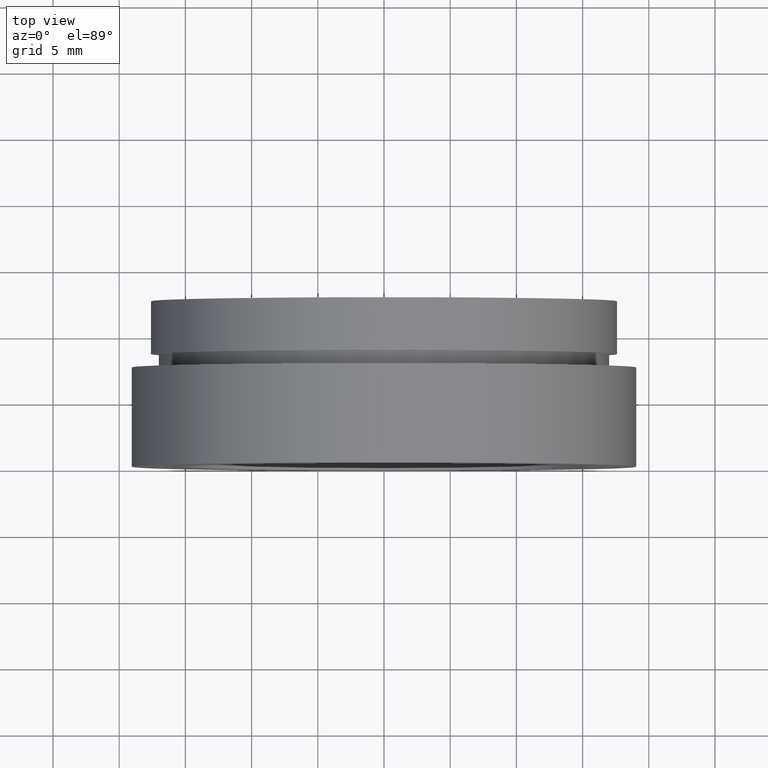
[diagram: clean part render]
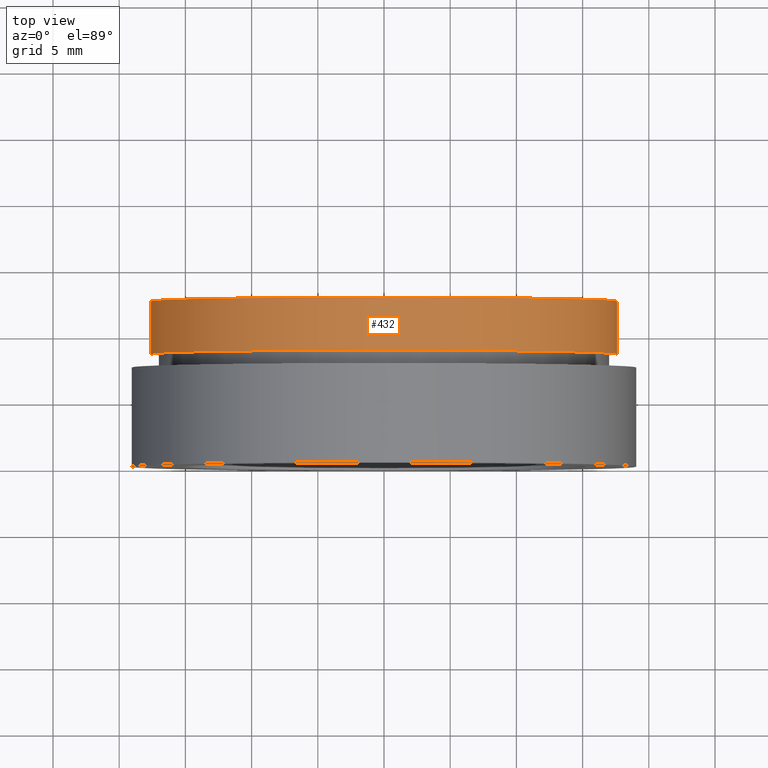
[diagram: same view with one face highlighted and labeled with its STEP entity id]
A machine part, top view. The second image highlights one B-rep face of the part: STEP entity #432.
In plain terms, the highlighted cylindrical surface (partial cylindrical patch) has radius 17.6 mm, axis along (-0, 1, -0).
Its self-contained STEP definition (entity closure, byte-faithful):
#2 = ORIENTED_EDGE ( 'NONE', *, *, #97, .F. ) ;
#20 = CYLINDRICAL_SURFACE ( 'NONE', #111, 17.60000000000000100 ) ;
#23 = AXIS2_PLACEMENT_3D ( 'NONE', #323, #183, #353 ) ;
#79 = EDGE_CURVE ( 'NONE', #88, #267, #138, .T. ) ;
#82 = VECTOR ( 'NONE', #283, 1000.000000000000000 ) ;
#88 = VERTEX_POINT ( 'NONE', #383 ) ;
#97 = EDGE_CURVE ( 'NONE', #237, #267, #264, .T. ) ;
#108 = EDGE_LOOP ( 'NONE', ( #341, #190, #2, #294 ) ) ;
#111 = AXIS2_PLACEMENT_3D ( 'NONE', #433, #337, #235 ) ;
#126 = CIRCLE ( 'NONE', #256, 17.60000000000000100 ) ;
#128 = DIRECTION ( 'NONE',  ( -1.224646799147351000E-016, 1.000000000000000000, -0.0000000000000000000 ) ) ;
#136 = LINE ( 'NONE', #261, #372 ) ;
#138 = LINE ( 'NONE', #181, #82 ) ;
#148 = CARTESIAN_POINT ( 'NONE',  ( 1.026991039163387700E-015, 8.499999999999998200, 0.0000000000000000000 ) ) ;
#151 = CARTESIAN_POINT ( 'NONE',  ( -17.60000000000000100, 12.49999999999999500, 0.0000000000000000000 ) ) ;
#163 = CARTESIAN_POINT ( 'NONE',  ( 17.60000000000000100, 12.49999999999999800, 2.155378366499341600E-015 ) ) ;
#164 = FACE_OUTER_BOUND ( 'NONE', #108, .T. ) ;
#181 = CARTESIAN_POINT ( 'NONE',  ( 17.60000000000000100, 16.88601823708208000, 2.155378366499341600E-015 ) ) ;
#182 = DIRECTION ( 'NONE',  ( -1.224646799147351000E-016, 1.000000000000000000, -0.0000000000000000000 ) ) ;
#183 = DIRECTION ( 'NONE',  ( -1.224646799147351000E-016, 1.000000000000000000, -0.0000000000000000000 ) ) ;
#190 = ORIENTED_EDGE ( 'NONE', *, *, #79, .T. ) ;
#234 = EDGE_CURVE ( 'NONE', #330, #88, #126, .T. ) ;
#235 = DIRECTION ( 'NONE',  ( -1.000000000000000000, -1.971276677246371500E-016, 0.0000000000000000000 ) ) ;
#237 = VERTEX_POINT ( 'NONE', #151 ) ;
#255 = EDGE_CURVE ( 'NONE', #330, #237, #136, .T. ) ;
#256 = AXIS2_PLACEMENT_3D ( 'NONE', #148, #182, #418 ) ;
#261 = CARTESIAN_POINT ( 'NONE',  ( -17.60000000000000100, 16.88601823708207300, 0.0000000000000000000 ) ) ;
#264 = CIRCLE ( 'NONE', #23, 17.60000000000000100 ) ;
#267 = VERTEX_POINT ( 'NONE', #163 ) ;
#283 = DIRECTION ( 'NONE',  ( -1.224646799147351000E-016, 1.000000000000000000, -0.0000000000000000000 ) ) ;
#294 = ORIENTED_EDGE ( 'NONE', *, *, #255, .F. ) ;
#323 = CARTESIAN_POINT ( 'NONE',  ( 5.371323195044474300E-016, 12.49999999999999600, 0.0000000000000000000 ) ) ;
#330 = VERTEX_POINT ( 'NONE', #365 ) ;
#337 = DIRECTION ( 'NONE',  ( -1.224646799147351000E-016, 1.000000000000000000, -0.0000000000000000000 ) ) ;
#341 = ORIENTED_EDGE ( 'NONE', *, *, #234, .T. ) ;
#353 = DIRECTION ( 'NONE',  ( -1.000000000000000000, -9.856383386231857600E-017, 0.0000000000000000000 ) ) ;
#365 = CARTESIAN_POINT ( 'NONE',  ( -17.60000000000000100, 8.499999999999996400, 0.0000000000000000000 ) ) ;
#372 = VECTOR ( 'NONE', #128, 1000.000000000000000 ) ;
#383 = CARTESIAN_POINT ( 'NONE',  ( 17.60000000000000100, 8.500000000000000000, 2.155378366499341600E-015 ) ) ;
#418 = DIRECTION ( 'NONE',  ( -1.000000000000000000, -9.856383386231857600E-017, 0.0000000000000000000 ) ) ;
#432 = ADVANCED_FACE ( 'NONE', ( #164 ), #20, .T. ) ;
#433 = CARTESIAN_POINT ( 'NONE',  ( 0.0000000000000000000, 16.88601823708207700, 0.0000000000000000000 ) ) ;